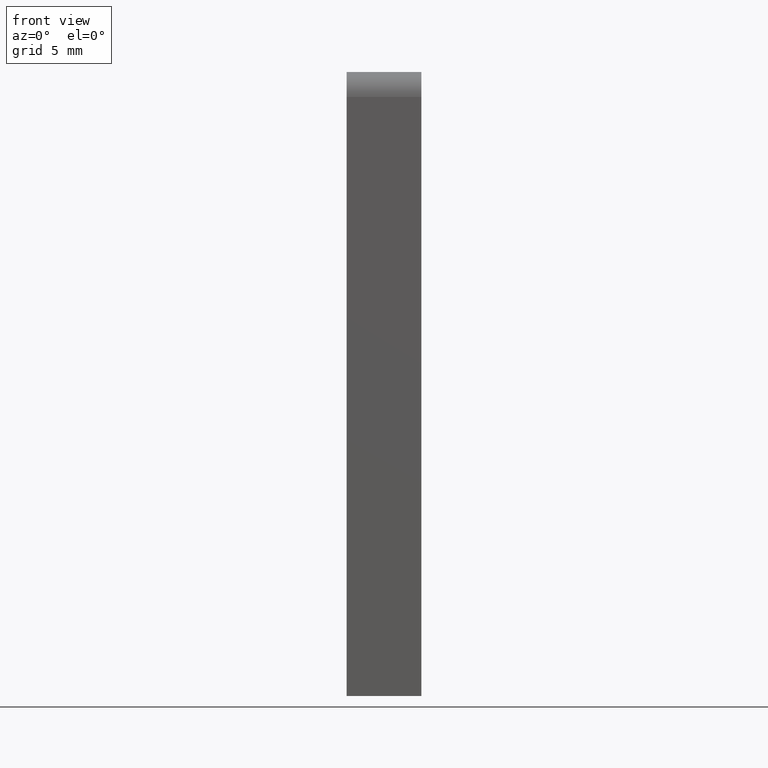
[diagram: clean part render]
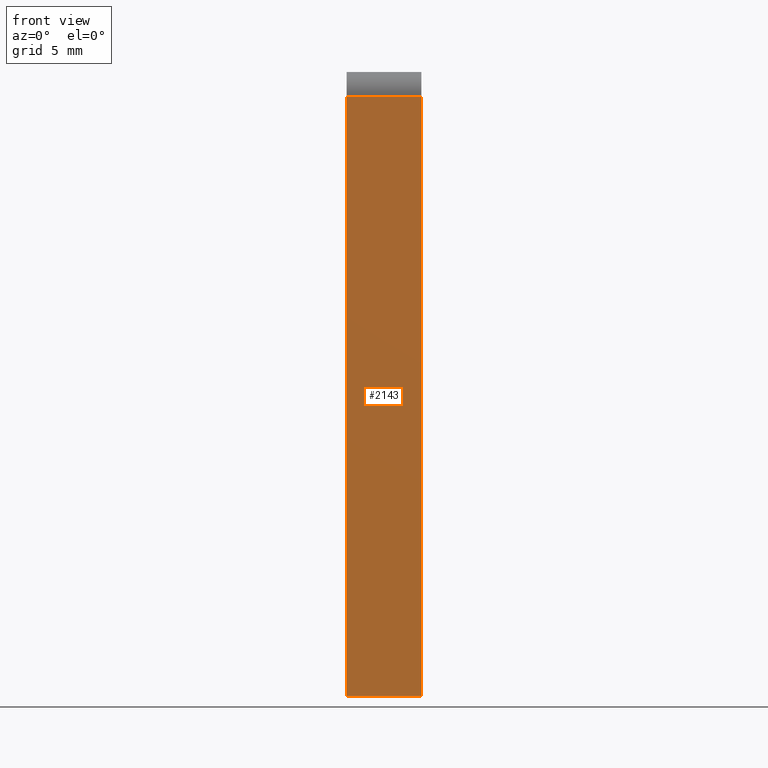
[diagram: same view with one face highlighted and labeled with its STEP entity id]
A machine part, front view. The second image highlights one B-rep face of the part: STEP entity #2143.
In plain terms, the highlighted planar face has unit normal (0, 1, 0).
Its self-contained STEP definition (entity closure, byte-faithful):
#290 = EDGE_CURVE ( 'NONE', #7152, #7658, #7261, .T. ) ;
#351 = EDGE_CURVE ( 'NONE', #3096, #4919, #5759, .T. ) ;
#1030 = LINE ( 'NONE', #2779, #3172 ) ;
#1237 = DIRECTION ( 'NONE',  ( -0.0000000000000000000, -0.0000000000000000000, -1.000000000000000000 ) ) ;
#1381 = ORIENTED_EDGE ( 'NONE', *, *, #5843, .T. ) ;
#2143 = ADVANCED_FACE ( 'NONE', ( #9330 ), #3320, .F. ) ;
#2779 = CARTESIAN_POINT ( 'NONE',  ( 3.000000000000000000, -15.00000000000000000, 47.99999999999997200 ) ) ;
#3096 = VERTEX_POINT ( 'NONE', #6947 ) ;
#3172 = VECTOR ( 'NONE', #8367, 1000.000000000000000 ) ;
#3274 = LINE ( 'NONE', #4428, #4159 ) ;
#3320 = PLANE ( 'NONE',  #4120 ) ;
#3607 = CARTESIAN_POINT ( 'NONE',  ( 3.000000000000000000, -15.00000000000000000, -4.286263797015736500E-015 ) ) ;
#4120 = AXIS2_PLACEMENT_3D ( 'NONE', #9721, #9687, #5048 ) ;
#4159 = VECTOR ( 'NONE', #8380, 1000.000000000000000 ) ;
#4428 = CARTESIAN_POINT ( 'NONE',  ( 3.000000000000000000, -15.00000000000000000, -4.286263797015736500E-015 ) ) ;
#4919 = VERTEX_POINT ( 'NONE', #7381 ) ;
#5048 = DIRECTION ( 'NONE',  ( 0.0000000000000000000, -0.0000000000000000000, 1.000000000000000000 ) ) ;
#5759 = LINE ( 'NONE', #7590, #8357 ) ;
#5843 = EDGE_CURVE ( 'NONE', #7152, #3096, #1030, .T. ) ;
#6009 = VECTOR ( 'NONE', #9950, 1000.000000000000000 ) ;
#6593 = ORIENTED_EDGE ( 'NONE', *, *, #290, .F. ) ;
#6656 = EDGE_LOOP ( 'NONE', ( #6593, #1381, #7185, #9373 ) ) ;
#6947 = CARTESIAN_POINT ( 'NONE',  ( -3.000000000000000000, -15.00000000000000000, 47.99999999999997200 ) ) ;
#7152 = VERTEX_POINT ( 'NONE', #9714 ) ;
#7185 = ORIENTED_EDGE ( 'NONE', *, *, #351, .T. ) ;
#7261 = LINE ( 'NONE', #3607, #6009 ) ;
#7381 = CARTESIAN_POINT ( 'NONE',  ( -3.000000000000000000, -15.00000000000000000, -4.286263797015736500E-015 ) ) ;
#7590 = CARTESIAN_POINT ( 'NONE',  ( -3.000000000000000000, -15.00000000000000000, -4.286263797015736500E-015 ) ) ;
#7658 = VERTEX_POINT ( 'NONE', #8114 ) ;
#8114 = CARTESIAN_POINT ( 'NONE',  ( 3.000000000000000000, -15.00000000000000000, -4.286263797015736500E-015 ) ) ;
#8357 = VECTOR ( 'NONE', #1237, 1000.000000000000000 ) ;
#8367 = DIRECTION ( 'NONE',  ( -1.000000000000000000, 0.0000000000000000000, 0.0000000000000000000 ) ) ;
#8380 = DIRECTION ( 'NONE',  ( -1.000000000000000000, -0.0000000000000000000, -0.0000000000000000000 ) ) ;
#9330 = FACE_OUTER_BOUND ( 'NONE', #6656, .T. ) ;
#9373 = ORIENTED_EDGE ( 'NONE', *, *, #9396, .F. ) ;
#9396 = EDGE_CURVE ( 'NONE', #7658, #4919, #3274, .T. ) ;
#9687 = DIRECTION ( 'NONE',  ( 0.0000000000000000000, 1.000000000000000000, 0.0000000000000000000 ) ) ;
#9714 = CARTESIAN_POINT ( 'NONE',  ( 3.000000000000000000, -15.00000000000000000, 47.99999999999997200 ) ) ;
#9721 = CARTESIAN_POINT ( 'NONE',  ( 3.000000000000000000, -15.00000000000000000, -4.286263797015736500E-015 ) ) ;
#9950 = DIRECTION ( 'NONE',  ( -0.0000000000000000000, -0.0000000000000000000, -1.000000000000000000 ) ) ;